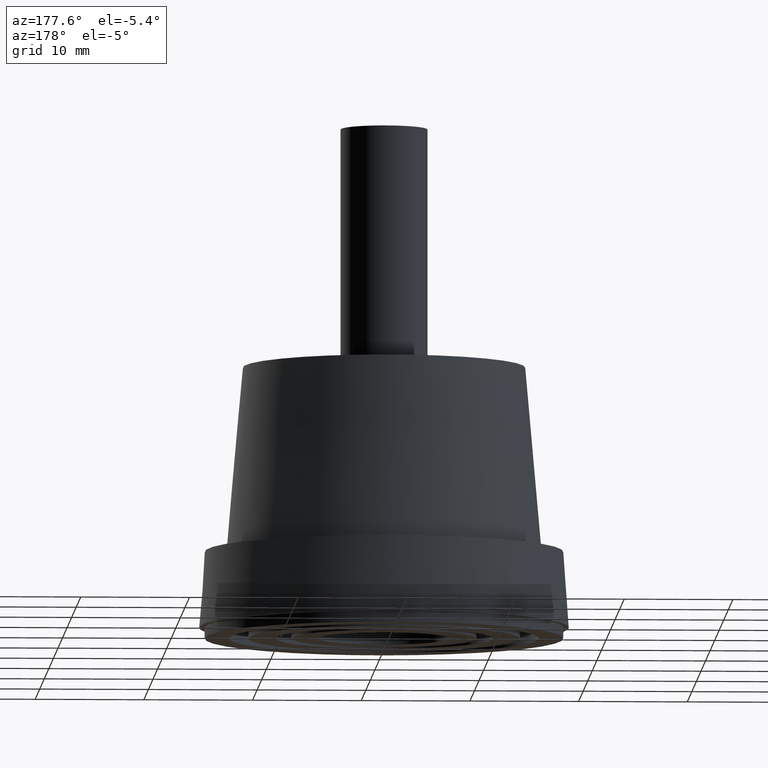
[diagram: clean part render]
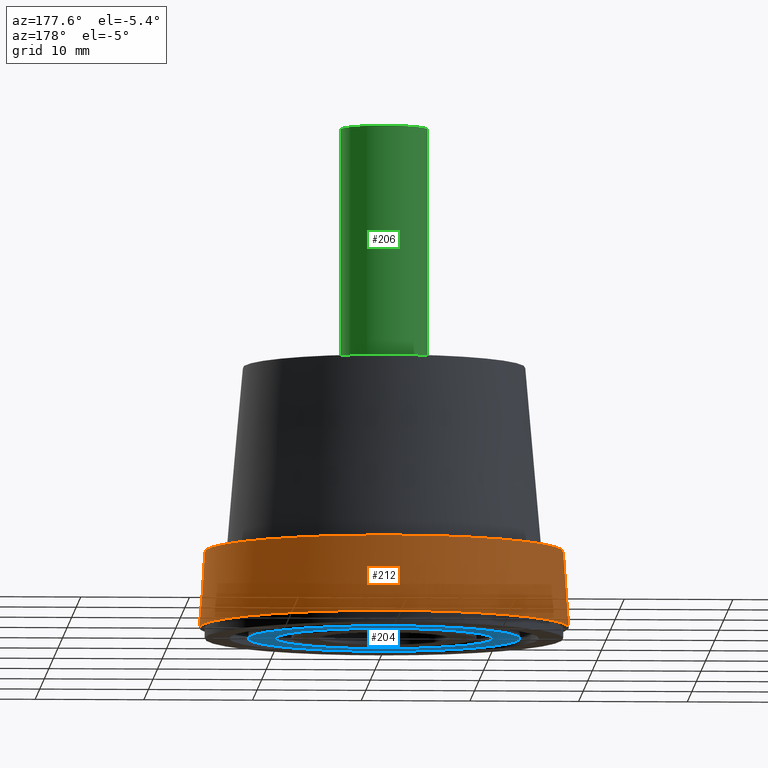
[diagram: same view with three faces highlighted in distinct colors, each labeled with its STEP entity id]
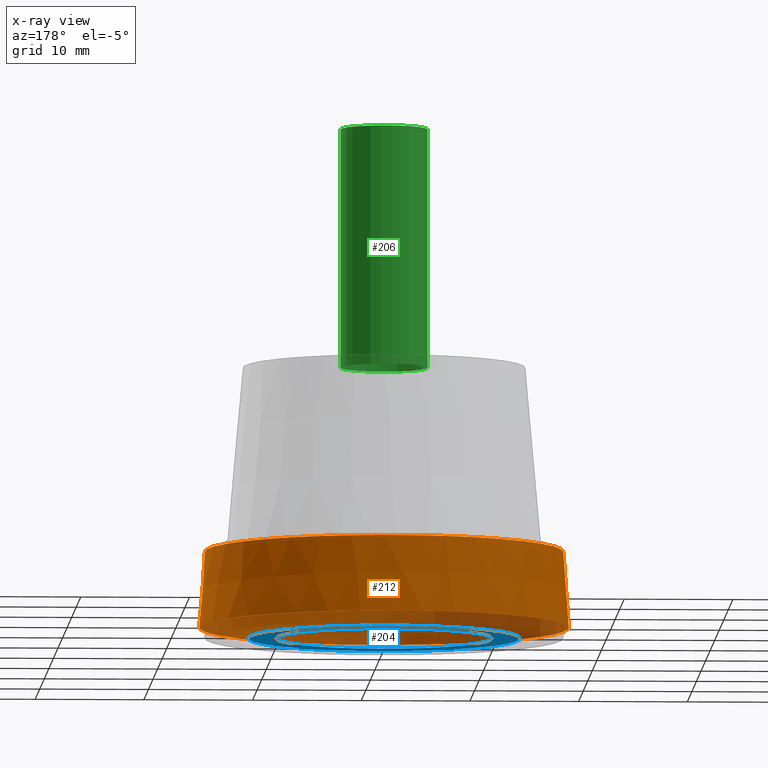
[diagram: x-ray of the same camera — body ghosted, the three highlighted faces saturated]
A machine part, auxiliary view with three faces highlighted in distinct colors.
The next image is the same camera in x-ray (body ghosted, the three faces saturated) — at least one of them is partly hidden behind the body in this view.
Their STEP definitions:

[orange] entity #212 — the highlighted conical surface has half-angle 4.086 deg.
#16=CONICAL_SURFACE('',#251,17.,4.08561677997488);
#41=FACE_BOUND('',#94,.T.);
#60=FACE_OUTER_BOUND('',#93,.T.);
#93=EDGE_LOOP('',(#183));
#94=EDGE_LOOP('',(#184));
#114=CIRCLE('',#247,17.);
#116=CIRCLE('',#250,16.5);
#132=VERTEX_POINT('',#376);
#134=VERTEX_POINT('',#381);
#150=EDGE_CURVE('',#132,#132,#114,.T.);
#152=EDGE_CURVE('',#134,#134,#116,.T.);
#183=ORIENTED_EDGE('',*,*,#150,.T.);
#184=ORIENTED_EDGE('',*,*,#152,.T.);
#212=ADVANCED_FACE('',(#60,#41),#16,.T.);
#247=AXIS2_PLACEMENT_3D('',#377,#316,#317);
#250=AXIS2_PLACEMENT_3D('',#382,#322,#323);
#251=AXIS2_PLACEMENT_3D('',#383,#324,#325);
#316=DIRECTION('center_axis',(0.,0.,1.));
#317=DIRECTION('ref_axis',(-1.,0.,0.));
#322=DIRECTION('center_axis',(0.,0.,-1.));
#323=DIRECTION('ref_axis',(-1.,0.,0.));
#324=DIRECTION('center_axis',(0.,0.,-1.));
#325=DIRECTION('ref_axis',(-1.,0.,0.));
#376=CARTESIAN_POINT('',(-17.,0.,1.));
#377=CARTESIAN_POINT('Origin',(0.,0.,1.));
#381=CARTESIAN_POINT('',(-16.5,0.,8.));
#382=CARTESIAN_POINT('Origin',(0.,0.,8.));
#383=CARTESIAN_POINT('Origin',(0.,0.,1.));

[blue] entity #204 — the highlighted planar face has unit normal (0, 0, 1).
#20=PLANE('',#235);
#34=FACE_BOUND('',#79,.T.);
#52=FACE_OUTER_BOUND('',#78,.T.);
#78=EDGE_LOOP('',(#168));
#79=EDGE_LOOP('',(#169));
#100=CIRCLE('',#219,12.5);
#106=CIRCLE('',#229,10.);
#118=VERTEX_POINT('',#334);
#124=VERTEX_POINT('',#350);
#136=EDGE_CURVE('',#118,#118,#100,.T.);
#142=EDGE_CURVE('',#124,#124,#106,.T.);
#168=ORIENTED_EDGE('',*,*,#136,.T.);
#169=ORIENTED_EDGE('',*,*,#142,.T.);
#204=ADVANCED_FACE('',(#52,#34),#20,.F.);
#219=AXIS2_PLACEMENT_3D('',#335,#260,#261);
#229=AXIS2_PLACEMENT_3D('',#351,#280,#281);
#235=AXIS2_PLACEMENT_3D('',#359,#292,#293);
#260=DIRECTION('center_axis',(0.,0.,-1.));
#261=DIRECTION('ref_axis',(1.,0.,0.));
#280=DIRECTION('center_axis',(0.,0.,1.));
#281=DIRECTION('ref_axis',(1.,0.,0.));
#292=DIRECTION('center_axis',(0.,0.,1.));
#293=DIRECTION('ref_axis',(1.,0.,0.));
#334=CARTESIAN_POINT('',(-12.5,1.53080849893419E-15,0.));
#335=CARTESIAN_POINT('Origin',(0.,0.,0.));
#350=CARTESIAN_POINT('',(-10.,1.22464679914735E-15,0.));
#351=CARTESIAN_POINT('Origin',(0.,0.,0.));
#359=CARTESIAN_POINT('Origin',(-1.06553885377178E-15,0.,0.));

[green] entity #206 — the highlighted cylindrical surface (bore or boss wall) has radius 4 mm, axis along (0, 0, 1).
#36=FACE_BOUND('',#83,.T.);
#54=FACE_OUTER_BOUND('',#82,.T.);
#82=EDGE_LOOP('',(#172));
#83=EDGE_LOOP('',(#173));
#110=CIRCLE('',#239,4.);
#111=CIRCLE('',#240,4.);
#128=VERTEX_POINT('',#364);
#129=VERTEX_POINT('',#366);
#146=EDGE_CURVE('',#128,#128,#110,.T.);
#147=EDGE_CURVE('',#129,#129,#111,.T.);
#172=ORIENTED_EDGE('',*,*,#146,.F.);
#173=ORIENTED_EDGE('',*,*,#147,.F.);
#194=CYLINDRICAL_SURFACE('',#238,4.);
#206=ADVANCED_FACE('',(#54,#36),#194,.T.);
#238=AXIS2_PLACEMENT_3D('',#363,#298,#299);
#239=AXIS2_PLACEMENT_3D('',#365,#300,#301);
#240=AXIS2_PLACEMENT_3D('',#367,#302,#303);
#298=DIRECTION('center_axis',(0.,0.,1.));
#299=DIRECTION('ref_axis',(-1.,0.,0.));
#300=DIRECTION('center_axis',(0.,0.,1.));
#301=DIRECTION('ref_axis',(-1.,0.,0.));
#302=DIRECTION('center_axis',(0.,0.,-1.));
#303=DIRECTION('ref_axis',(-1.,0.,0.));
#363=CARTESIAN_POINT('Origin',(0.,0.,25.));
#364=CARTESIAN_POINT('',(4.,4.89858719658941E-16,47.));
#365=CARTESIAN_POINT('Origin',(0.,0.,47.));
#366=CARTESIAN_POINT('',(4.,4.89858719658941E-16,25.));
#367=CARTESIAN_POINT('Origin',(0.,0.,25.));